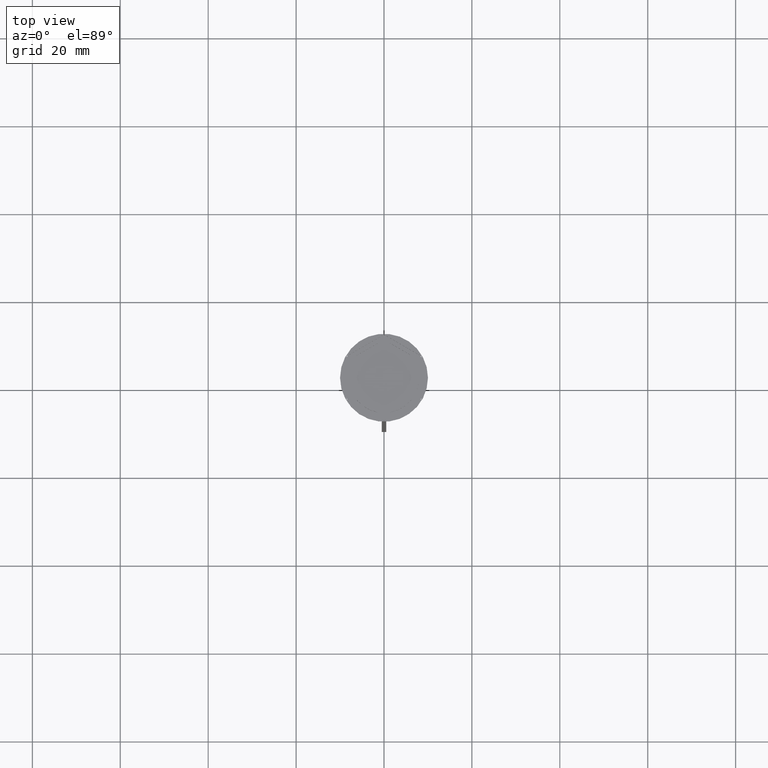
[diagram: clean part render]
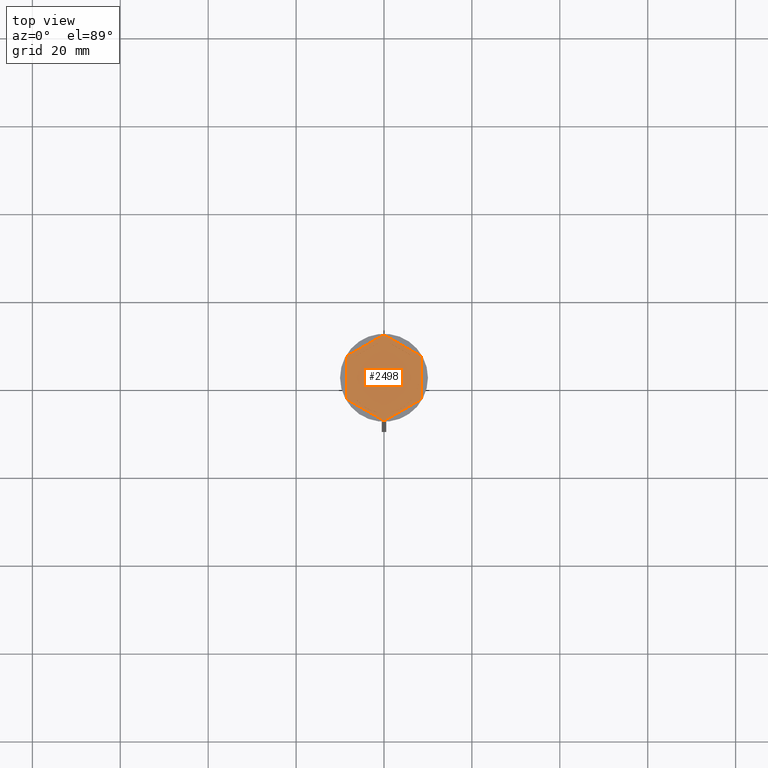
[diagram: same view with one face highlighted and labeled with its STEP entity id]
A machine part, top view. The second image highlights one B-rep face of the part: STEP entity #2498.
In plain terms, the highlighted planar face has unit normal (0, 0, 1).
Its self-contained STEP definition (entity closure, byte-faithful):
#11 = AXIS2_PLACEMENT_3D ( 'NONE', #857, #1497, #1667 ) ;
#12 = CIRCLE ( 'NONE', #1656, 9.699999999999990408 ) ;
#16 = CARTESIAN_POINT ( 'NONE',  ( 0.2027787310304044188, -9.697880221277303647, -1.000000000000000000 ) ) ;
#20 = DIRECTION ( 'NONE',  ( 0.000000000000000000, 0.000000000000000000, 1.000000000000000000 ) ) ;
#28 = VERTEX_POINT ( 'NONE', #467 ) ;
#43 = FACE_BOUND ( 'NONE', #1718, .T. ) ;
#57 = CARTESIAN_POINT ( 'NONE',  ( -7.500000000000000000, 2.783882181415010759, -1.000000000000000888 ) ) ;
#75 = EDGE_LOOP ( 'NONE', ( #1966, #177 ) ) ;
#80 = DIRECTION ( 'NONE',  ( 1.000000000000000000, 0.000000000000000000, 0.000000000000000000 ) ) ;
#81 = DIRECTION ( 'NONE',  ( 1.000000000000000000, 0.000000000000000000, 0.000000000000000000 ) ) ;
#82 = ORIENTED_EDGE ( 'NONE', *, *, #641, .F. ) ;
#102 = EDGE_LOOP ( 'NONE', ( #1421, #2222, #1773 ) ) ;
#106 = CIRCLE ( 'NONE', #1617, 9.699999999999990408 ) ;
#118 = CARTESIAN_POINT ( 'NONE',  ( 0.000000000000000000, 0.000000000000000000, -1.000000000000000000 ) ) ;
#142 = VECTOR ( 'NONE', #1212, 1000.000000000000227 ) ;
#165 = DIRECTION ( 'NONE',  ( 0.8660254037844387076, -0.4999999999999998890, 0.000000000000000000 ) ) ;
#168 = VERTEX_POINT ( 'NONE', #459 ) ;
#176 = EDGE_CURVE ( 'NONE', #642, #1388, #2548, .T. ) ;
#177 = ORIENTED_EDGE ( 'NONE', *, *, #597, .F. ) ;
#190 = CARTESIAN_POINT ( 'NONE',  ( 0.000000000000000000, 0.000000000000000000, -1.000000000000000000 ) ) ;
#210 = CARTESIAN_POINT ( 'NONE',  ( -1.339087309751759047, 7.887131619090796519, -1.000000000000000888 ) ) ;
#215 = VERTEX_POINT ( 'NONE', #2350 ) ;
#237 = LINE ( 'NONE', #820, #2212 ) ;
#257 = EDGE_CURVE ( 'NONE', #168, #1816, #1931, .T. ) ;
#260 = FACE_OUTER_BOUND ( 'NONE', #394, .T. ) ;
#264 = CARTESIAN_POINT ( 'NONE',  ( -8.297221268969593666, -5.024551643058157602, -1.000000000000000000 ) ) ;
#271 = EDGE_CURVE ( 'NONE', #1356, #689, #12, .T. ) ;
#324 = EDGE_LOOP ( 'NONE', ( #959, #1926 ) ) ;
#325 = CARTESIAN_POINT ( 'NONE',  ( 7.500000000000001776, 4.330127018922192761, -1.000000000000000888 ) ) ;
#327 = VERTEX_POINT ( 'NONE', #977 ) ;
#343 = DIRECTION ( 'NONE',  ( 0.000000000000000000, 0.000000000000000000, 1.000000000000000000 ) ) ;
#362 = AXIS2_PLACEMENT_3D ( 'NONE', #1730, #1960, #81 ) ;
#373 = CARTESIAN_POINT ( 'NONE',  ( 0.000000000000000000, 0.000000000000000000, -1.000000000000000000 ) ) ;
#375 = EDGE_CURVE ( 'NONE', #327, #1766, #1605, .T. ) ;
#383 = ORIENTED_EDGE ( 'NONE', *, *, #762, .T. ) ;
#394 = EDGE_LOOP ( 'NONE', ( #824, #1424, #1290, #2291, #624, #1409, #2169, #2004, #383, #2448, #2140, #872 ) ) ;
#396 = CARTESIAN_POINT ( 'NONE',  ( 8.673617379884035472E-16, 8.660254037844385522, -1.000000000000000888 ) ) ;
#417 = CARTESIAN_POINT ( 'NONE',  ( 0.000000000000000000, 0.000000000000000000, -1.000000000000000000 ) ) ;
#459 = CARTESIAN_POINT ( 'NONE',  ( -8.500000000000000000, 4.673328578219146934, -1.000000000000000000 ) ) ;
#467 = CARTESIAN_POINT ( 'NONE',  ( -8.297221268969593666, 5.024551643058155825, -1.000000000000000000 ) ) ;
#474 = CARTESIAN_POINT ( 'NONE',  ( 6.160912690248237844, 5.103249437675785316, -1.000000000000000888 ) ) ;
#518 = DIRECTION ( 'NONE',  ( 1.000000000000000000, 2.486899575160350651E-14, 0.000000000000000000 ) ) ;
#538 = AXIS2_PLACEMENT_3D ( 'NONE', #2288, #343, #2627 ) ;
#576 = EDGE_CURVE ( 'NONE', #735, #2458, #237, .T. ) ;
#595 = EDGE_CURVE ( 'NONE', #812, #1841, #2167, .T. ) ;
#597 = EDGE_CURVE ( 'NONE', #1841, #812, #2668, .T. ) ;
#602 = ORIENTED_EDGE ( 'NONE', *, *, #375, .F. ) ;
#606 = CARTESIAN_POINT ( 'NONE',  ( -0.2027787310304044188, -9.697880221277303647, -1.000000000000000000 ) ) ;
#617 = CARTESIAN_POINT ( 'NONE',  ( -7.500000000000000000, -2.783882181415010759, -1.000000000000000888 ) ) ;
#619 = LINE ( 'NONE', #1443, #2382 ) ;
#624 = ORIENTED_EDGE ( 'NONE', *, *, #1367, .T. ) ;
#641 = EDGE_CURVE ( 'NONE', #911, #1191, #619, .T. ) ;
#642 = VERTEX_POINT ( 'NONE', #2052 ) ;
#644 = CARTESIAN_POINT ( 'NONE',  ( 0.000000000000000000, 0.000000000000000000, -1.000000000000000000 ) ) ;
#673 = CARTESIAN_POINT ( 'NONE',  ( 8.500000000000000000, -4.907477288111818936, -1.000000000000000000 ) ) ;
#676 = FACE_BOUND ( 'NONE', #75, .T. ) ;
#689 = VERTEX_POINT ( 'NONE', #606 ) ;
#709 = CARTESIAN_POINT ( 'NONE',  ( 6.160912690248236068, -5.103249437675787981, -1.000000000000000888 ) ) ;
#726 = EDGE_CURVE ( 'NONE', #2235, #2129, #2097, .T. ) ;
#735 = VERTEX_POINT ( 'NONE', #617 ) ;
#742 = VERTEX_POINT ( 'NONE', #818 ) ;
#751 = CARTESIAN_POINT ( 'NONE',  ( 7.500000000000001776, 2.783882181415006762, -1.000000000000000888 ) ) ;
#761 = EDGE_CURVE ( 'NONE', #2458, #1579, #1183, .T. ) ;
#762 = EDGE_CURVE ( 'NONE', #1370, #689, #1676, .T. ) ;
#797 = VECTOR ( 'NONE', #1629, 999.9999999999998863 ) ;
#799 = VECTOR ( 'NONE', #1534, 1000.000000000000000 ) ;
#801 = VERTEX_POINT ( 'NONE', #2653 ) ;
#812 = VERTEX_POINT ( 'NONE', #210 ) ;
#818 = CARTESIAN_POINT ( 'NONE',  ( -0.2027787310304009494, 9.697880221277303647, -1.000000000000000000 ) ) ;
#820 = CARTESIAN_POINT ( 'NONE',  ( -7.500000000000000000, 4.330127018922190985, -1.000000000000000888 ) ) ;
#824 = ORIENTED_EDGE ( 'NONE', *, *, #176, .T. ) ;
#857 = CARTESIAN_POINT ( 'NONE',  ( 0.000000000000000000, 0.000000000000000000, -1.000000000000000000 ) ) ;
#872 = ORIENTED_EDGE ( 'NONE', *, *, #1877, .F. ) ;
#880 = LINE ( 'NONE', #2070, #2605 ) ;
#908 = EDGE_LOOP ( 'NONE', ( #1086, #2092 ) ) ;
#911 = VERTEX_POINT ( 'NONE', #1509 ) ;
#923 = AXIS2_PLACEMENT_3D ( 'NONE', #1733, #2322, #1301 ) ;
#928 = CIRCLE ( 'NONE', #11, 8.000000000000000000 ) ;
#944 = DIRECTION ( 'NONE',  ( 0.000000000000000000, 0.000000000000000000, 1.000000000000000000 ) ) ;
#959 = ORIENTED_EDGE ( 'NONE', *, *, #2227, .F. ) ;
#964 = VECTOR ( 'NONE', #165, 1000.000000000000000 ) ;
#966 = CIRCLE ( 'NONE', #923, 9.699999999999990408 ) ;
#967 = VECTOR ( 'NONE', #2462, 1000.000000000000000 ) ;
#977 = CARTESIAN_POINT ( 'NONE',  ( 1.339087309751760380, 7.887131619090794743, -1.000000000000000888 ) ) ;
#991 = ORIENTED_EDGE ( 'NONE', *, *, #1040, .F. ) ;
#1040 = EDGE_CURVE ( 'NONE', #1766, #327, #1735, .T. ) ;
#1052 = EDGE_CURVE ( 'NONE', #215, #1388, #1232, .T. ) ;
#1075 = FACE_BOUND ( 'NONE', #908, .T. ) ;
#1083 = CARTESIAN_POINT ( 'NONE',  ( -8.500000000000000000, 4.907477288111818936, -1.000000000000000000 ) ) ;
#1086 = ORIENTED_EDGE ( 'NONE', *, *, #1420, .F. ) ;
#1110 = CARTESIAN_POINT ( 'NONE',  ( 0.000000000000000000, 0.000000000000000000, -1.000000000000000000 ) ) ;
#1134 = CARTESIAN_POINT ( 'NONE',  ( 0.000000000000000000, 0.000000000000000000, -1.000000000000000000 ) ) ;
#1135 = VECTOR ( 'NONE', #1630, 1000.000000000000114 ) ;
#1140 = CIRCLE ( 'NONE', #1406, 9.699999999999990408 ) ;
#1183 = CIRCLE ( 'NONE', #1614, 8.000000000000000000 ) ;
#1191 = VERTEX_POINT ( 'NONE', #2032 ) ;
#1199 = DIRECTION ( 'NONE',  ( -0.000000000000000000, -0.000000000000000000, -1.000000000000000000 ) ) ;
#1212 = DIRECTION ( 'NONE',  ( 0.8660254037844385966, 0.5000000000000000000, 0.000000000000000000 ) ) ;
#1225 = DIRECTION ( 'NONE',  ( -0.8660254037844384856, 0.5000000000000002220, 0.000000000000000000 ) ) ;
#1227 = CARTESIAN_POINT ( 'NONE',  ( -1.301042606982605321E-15, -8.660254037844387298, -1.000000000000000888 ) ) ;
#1232 = CIRCLE ( 'NONE', #2551, 9.699999999999990408 ) ;
#1246 = CARTESIAN_POINT ( 'NONE',  ( 1.339087309751762156, -7.887131619090794743, -1.000000000000000888 ) ) ;
#1280 = FACE_BOUND ( 'NONE', #1291, .T. ) ;
#1290 = ORIENTED_EDGE ( 'NONE', *, *, #2530, .T. ) ;
#1291 = EDGE_LOOP ( 'NONE', ( #991, #602 ) ) ;
#1301 = DIRECTION ( 'NONE',  ( 1.000000000000000000, 0.000000000000000000, 0.000000000000000000 ) ) ;
#1312 = CIRCLE ( 'NONE', #538, 8.000000000000000000 ) ;
#1321 = FACE_BOUND ( 'NONE', #324, .T. ) ;
#1331 = DIRECTION ( 'NONE',  ( 1.000000000000000000, 0.000000000000000000, -0.000000000000000000 ) ) ;
#1341 = CARTESIAN_POINT ( 'NONE',  ( 7.500000000000000000, -2.783882181415009427, -1.000000000000000888 ) ) ;
#1356 = VERTEX_POINT ( 'NONE', #16 ) ;
#1361 = VECTOR ( 'NONE', #1441, 1000.000000000000114 ) ;
#1367 = EDGE_CURVE ( 'NONE', #742, #28, #880, .T. ) ;
#1370 = VERTEX_POINT ( 'NONE', #264 ) ;
#1388 = VERTEX_POINT ( 'NONE', #1916 ) ;
#1390 = DIRECTION ( 'NONE',  ( 1.000000000000000000, 0.000000000000000000, 0.000000000000000000 ) ) ;
#1406 = AXIS2_PLACEMENT_3D ( 'NONE', #373, #1774, #518 ) ;
#1409 = ORIENTED_EDGE ( 'NONE', *, *, #2670, .F. ) ;
#1420 = EDGE_CURVE ( 'NONE', #2380, #2166, #928, .T. ) ;
#1421 = ORIENTED_EDGE ( 'NONE', *, *, #761, .F. ) ;
#1424 = ORIENTED_EDGE ( 'NONE', *, *, #1052, .F. ) ;
#1441 = DIRECTION ( 'NONE',  ( 0.8660254037844387076, -0.4999999999999997780, 0.000000000000000000 ) ) ;
#1443 = CARTESIAN_POINT ( 'NONE',  ( -7.500000000000000000, -4.330127018922193649, -1.000000000000000888 ) ) ;
#1492 = PLANE ( 'NONE',  #1613 ) ;
#1497 = DIRECTION ( 'NONE',  ( 0.000000000000000000, 0.000000000000000000, 1.000000000000000000 ) ) ;
#1509 = CARTESIAN_POINT ( 'NONE',  ( -1.339087309751766819, -7.887131619090794743, -1.000000000000000888 ) ) ;
#1510 = DIRECTION ( 'NONE',  ( 0.000000000000000000, 1.000000000000000000, 0.000000000000000000 ) ) ;
#1527 = AXIS2_PLACEMENT_3D ( 'NONE', #2412, #2427, #1390 ) ;
#1534 = DIRECTION ( 'NONE',  ( -0.8660254037844388186, 0.4999999999999997224, 0.000000000000000000 ) ) ;
#1579 = VERTEX_POINT ( 'NONE', #2576 ) ;
#1590 = EDGE_CURVE ( 'NONE', #1579, #735, #2640, .T. ) ;
#1605 = LINE ( 'NONE', #325, #964 ) ;
#1613 = AXIS2_PLACEMENT_3D ( 'NONE', #2321, #1907, #1331 ) ;
#1614 = AXIS2_PLACEMENT_3D ( 'NONE', #644, #2274, #1639 ) ;
#1617 = AXIS2_PLACEMENT_3D ( 'NONE', #2224, #1199, #2083 ) ;
#1629 = DIRECTION ( 'NONE',  ( 0.8660254037844387076, 0.5000000000000001110, -0.000000000000000000 ) ) ;
#1630 = DIRECTION ( 'NONE',  ( -0.8660254037844387076, -0.4999999999999997780, 0.000000000000000000 ) ) ;
#1639 = DIRECTION ( 'NONE',  ( 1.000000000000000000, 0.000000000000000000, 0.000000000000000000 ) ) ;
#1642 = CARTESIAN_POINT ( 'NONE',  ( 8.729740977282959667E-16, -9.814954576223637872, -1.000000000000000000 ) ) ;
#1647 = EDGE_CURVE ( 'NONE', #1370, #1816, #2121, .T. ) ;
#1651 = CARTESIAN_POINT ( 'NONE',  ( -8.500000000000000000, -4.907477288111819824, -1.000000000000000000 ) ) ;
#1653 = VECTOR ( 'NONE', #1510, 1000.000000000000000 ) ;
#1656 = AXIS2_PLACEMENT_3D ( 'NONE', #1110, #1704, #80 ) ;
#1667 = DIRECTION ( 'NONE',  ( 1.000000000000000000, 0.000000000000000000, 0.000000000000000000 ) ) ;
#1676 = LINE ( 'NONE', #1651, #1361 ) ;
#1690 = FACE_BOUND ( 'NONE', #102, .T. ) ;
#1704 = DIRECTION ( 'NONE',  ( -0.000000000000000000, -0.000000000000000000, -1.000000000000000000 ) ) ;
#1718 = EDGE_LOOP ( 'NONE', ( #1758, #82 ) ) ;
#1720 = CARTESIAN_POINT ( 'NONE',  ( -8.500000000000000000, -4.673328578219146934, -1.000000000000000000 ) ) ;
#1730 = CARTESIAN_POINT ( 'NONE',  ( 0.000000000000000000, 0.000000000000000000, -1.000000000000000000 ) ) ;
#1733 = CARTESIAN_POINT ( 'NONE',  ( 0.000000000000000000, 0.000000000000000000, -1.000000000000000000 ) ) ;
#1735 = CIRCLE ( 'NONE', #1527, 8.000000000000000000 ) ;
#1758 = ORIENTED_EDGE ( 'NONE', *, *, #2346, .F. ) ;
#1766 = VERTEX_POINT ( 'NONE', #474 ) ;
#1768 = DIRECTION ( 'NONE',  ( 1.000000000000000000, 0.000000000000000000, 0.000000000000000000 ) ) ;
#1773 = ORIENTED_EDGE ( 'NONE', *, *, #1590, .F. ) ;
#1774 = DIRECTION ( 'NONE',  ( -0.000000000000000000, -0.000000000000000000, -1.000000000000000000 ) ) ;
#1797 = DIRECTION ( 'NONE',  ( 1.000000000000000000, 0.000000000000000000, 0.000000000000000000 ) ) ;
#1816 = VERTEX_POINT ( 'NONE', #1720 ) ;
#1841 = VERTEX_POINT ( 'NONE', #2139 ) ;
#1877 = EDGE_CURVE ( 'NONE', #642, #801, #966, .T. ) ;
#1884 = DIRECTION ( 'NONE',  ( -0.8660254037844387076, -0.4999999999999997780, 0.000000000000000000 ) ) ;
#1896 = CARTESIAN_POINT ( 'NONE',  ( 0.2027787310304000890, 9.697880221277303647, -1.000000000000000000 ) ) ;
#1904 = DIRECTION ( 'NONE',  ( 0.000000000000000000, -1.000000000000000000, 0.000000000000000000 ) ) ;
#1907 = DIRECTION ( 'NONE',  ( 0.000000000000000000, 0.000000000000000000, 1.000000000000000000 ) ) ;
#1916 = CARTESIAN_POINT ( 'NONE',  ( 8.500000000000000000, 4.673328578219146934, -1.000000000000000000 ) ) ;
#1926 = ORIENTED_EDGE ( 'NONE', *, *, #726, .F. ) ;
#1931 = LINE ( 'NONE', #1083, #2333 ) ;
#1960 = DIRECTION ( 'NONE',  ( 0.000000000000000000, 0.000000000000000000, 1.000000000000000000 ) ) ;
#1966 = ORIENTED_EDGE ( 'NONE', *, *, #595, .F. ) ;
#1994 = AXIS2_PLACEMENT_3D ( 'NONE', #118, #944, #1768 ) ;
#2004 = ORIENTED_EDGE ( 'NONE', *, *, #1647, .F. ) ;
#2014 = DIRECTION ( 'NONE',  ( -0.000000000000000000, -0.000000000000000000, -1.000000000000000000 ) ) ;
#2032 = CARTESIAN_POINT ( 'NONE',  ( -6.160912690248237844, -5.103249437675787092, -1.000000000000000888 ) ) ;
#2052 = CARTESIAN_POINT ( 'NONE',  ( 8.500000000000000000, -4.673328578219146934, -1.000000000000000000 ) ) ;
#2064 = DIRECTION ( 'NONE',  ( 0.000000000000000000, 1.000000000000000000, 0.000000000000000000 ) ) ;
#2070 = CARTESIAN_POINT ( 'NONE',  ( 0.000000000000000000, 9.814954576223636096, -1.000000000000000000 ) ) ;
#2072 = EDGE_CURVE ( 'NONE', #1356, #801, #2251, .T. ) ;
#2075 = EDGE_CURVE ( 'NONE', #2166, #2380, #2452, .T. ) ;
#2081 = CARTESIAN_POINT ( 'NONE',  ( 7.500000000000000000, -4.330127018922195425, -1.000000000000000888 ) ) ;
#2083 = DIRECTION ( 'NONE',  ( 1.000000000000000000, 0.000000000000000000, 0.000000000000000000 ) ) ;
#2090 = CIRCLE ( 'NONE', #362, 8.000000000000000000 ) ;
#2092 = ORIENTED_EDGE ( 'NONE', *, *, #2075, .F. ) ;
#2097 = LINE ( 'NONE', #2081, #967 ) ;
#2121 = CIRCLE ( 'NONE', #2164, 9.699999999999990408 ) ;
#2129 = VERTEX_POINT ( 'NONE', #1341 ) ;
#2139 = CARTESIAN_POINT ( 'NONE',  ( -6.160912690248241397, 5.103249437675783540, -1.000000000000000888 ) ) ;
#2140 = ORIENTED_EDGE ( 'NONE', *, *, #2072, .T. ) ;
#2164 = AXIS2_PLACEMENT_3D ( 'NONE', #190, #2014, #1797 ) ;
#2166 = VERTEX_POINT ( 'NONE', #709 ) ;
#2167 = CIRCLE ( 'NONE', #2555, 8.000000000000000000 ) ;
#2169 = ORIENTED_EDGE ( 'NONE', *, *, #257, .T. ) ;
#2173 = DIRECTION ( 'NONE',  ( 1.000000000000000000, 0.000000000000000000, 0.000000000000000000 ) ) ;
#2212 = VECTOR ( 'NONE', #2064, 1000.000000000000000 ) ;
#2222 = ORIENTED_EDGE ( 'NONE', *, *, #576, .F. ) ;
#2224 = CARTESIAN_POINT ( 'NONE',  ( 0.000000000000000000, 0.000000000000000000, -1.000000000000000000 ) ) ;
#2227 = EDGE_CURVE ( 'NONE', #2129, #2235, #2090, .T. ) ;
#2235 = VERTEX_POINT ( 'NONE', #751 ) ;
#2251 = LINE ( 'NONE', #1642, #142 ) ;
#2274 = DIRECTION ( 'NONE',  ( 0.000000000000000000, 0.000000000000000000, 1.000000000000000000 ) ) ;
#2288 = CARTESIAN_POINT ( 'NONE',  ( 0.000000000000000000, 0.000000000000000000, -1.000000000000000000 ) ) ;
#2291 = ORIENTED_EDGE ( 'NONE', *, *, #2584, .F. ) ;
#2298 = DIRECTION ( 'NONE',  ( 1.000000000000000000, 0.000000000000000000, 0.000000000000000000 ) ) ;
#2321 = CARTESIAN_POINT ( 'NONE',  ( 0.000000000000000000, 0.000000000000000000, -1.000000000000000000 ) ) ;
#2322 = DIRECTION ( 'NONE',  ( -0.000000000000000000, -0.000000000000000000, -1.000000000000000000 ) ) ;
#2333 = VECTOR ( 'NONE', #1904, 1000.000000000000000 ) ;
#2334 = LINE ( 'NONE', #2539, #799 ) ;
#2346 = EDGE_CURVE ( 'NONE', #1191, #911, #1312, .T. ) ;
#2350 = CARTESIAN_POINT ( 'NONE',  ( 8.297221268969593666, 5.024551643058155825, -1.000000000000000000 ) ) ;
#2380 = VERTEX_POINT ( 'NONE', #1246 ) ;
#2382 = VECTOR ( 'NONE', #1225, 1000.000000000000114 ) ;
#2401 = DIRECTION ( 'NONE',  ( -0.000000000000000000, -0.000000000000000000, -1.000000000000000000 ) ) ;
#2412 = CARTESIAN_POINT ( 'NONE',  ( 0.000000000000000000, 0.000000000000000000, -1.000000000000000000 ) ) ;
#2427 = DIRECTION ( 'NONE',  ( 0.000000000000000000, 0.000000000000000000, 1.000000000000000000 ) ) ;
#2448 = ORIENTED_EDGE ( 'NONE', *, *, #271, .F. ) ;
#2452 = LINE ( 'NONE', #1227, #1135 ) ;
#2458 = VERTEX_POINT ( 'NONE', #57 ) ;
#2462 = DIRECTION ( 'NONE',  ( -2.003086131649545704E-16, -1.000000000000000000, 0.000000000000000000 ) ) ;
#2476 = VERTEX_POINT ( 'NONE', #1896 ) ;
#2498 = ADVANCED_FACE ( 'NONE', ( #1280, #1321, #1075, #43, #1690, #676, #260 ), #1492, .T. ) ;
#2530 = EDGE_CURVE ( 'NONE', #215, #2476, #2334, .T. ) ;
#2539 = CARTESIAN_POINT ( 'NONE',  ( 8.500000000000000000, 4.907477288111819824, -1.000000000000000000 ) ) ;
#2548 = LINE ( 'NONE', #673, #1653 ) ;
#2551 = AXIS2_PLACEMENT_3D ( 'NONE', #1134, #2401, #2173 ) ;
#2555 = AXIS2_PLACEMENT_3D ( 'NONE', #417, #20, #2298 ) ;
#2576 = CARTESIAN_POINT ( 'NONE',  ( -8.000000000000000000, 0.000000000000000000, -1.000000000000000000 ) ) ;
#2584 = EDGE_CURVE ( 'NONE', #742, #2476, #1140, .T. ) ;
#2605 = VECTOR ( 'NONE', #1884, 1000.000000000000114 ) ;
#2627 = DIRECTION ( 'NONE',  ( 1.000000000000000000, 0.000000000000000000, 0.000000000000000000 ) ) ;
#2640 = CIRCLE ( 'NONE', #1994, 8.000000000000000000 ) ;
#2653 = CARTESIAN_POINT ( 'NONE',  ( 8.297221268969593666, -5.024551643058152273, -1.000000000000000000 ) ) ;
#2668 = LINE ( 'NONE', #396, #797 ) ;
#2670 = EDGE_CURVE ( 'NONE', #168, #28, #106, .T. ) ;